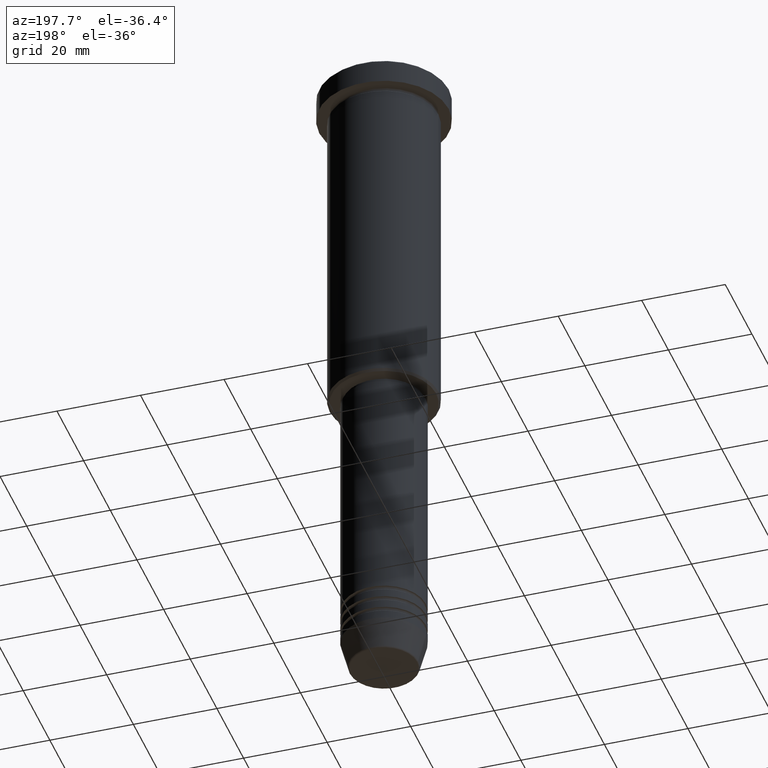
[diagram: clean part render]
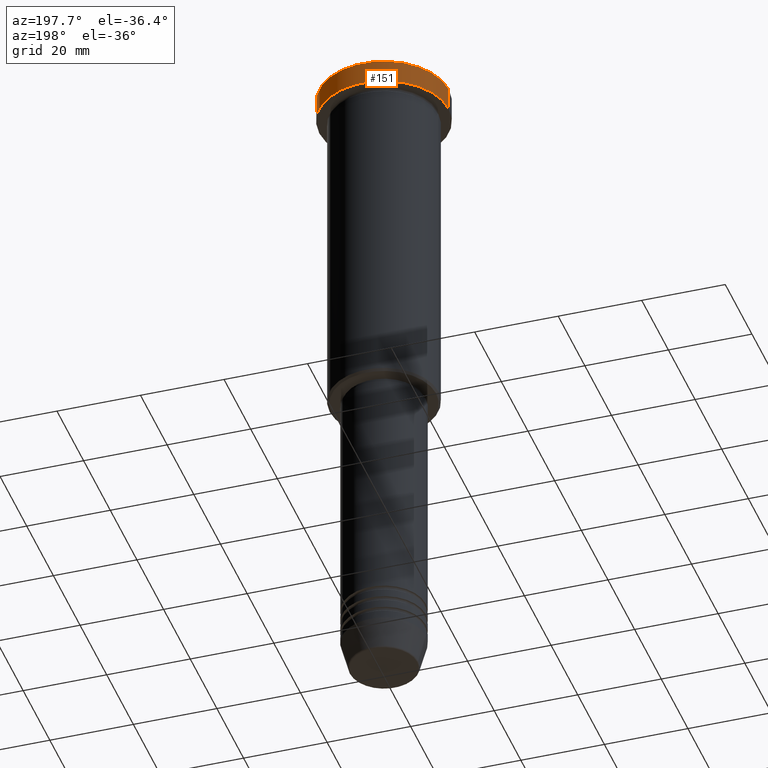
[diagram: same view with one face highlighted and labeled with its STEP entity id]
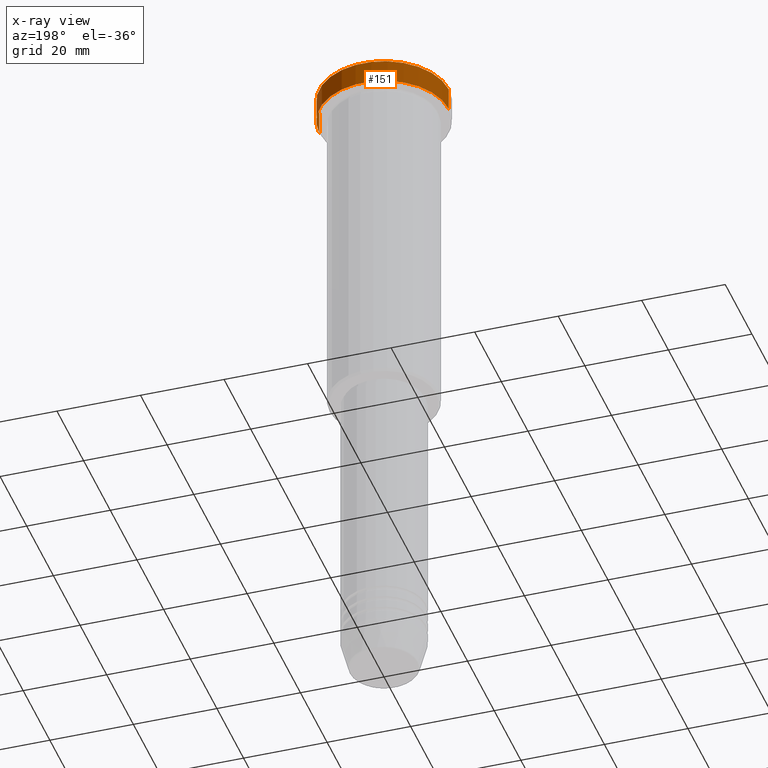
[diagram: x-ray of the same camera — body ghosted, the highlighted face saturated]
A machine part, auxiliary view. The second image highlights one B-rep face of the part: STEP entity #151.
The next image is the same camera in x-ray: the body ghosted, the highlighted face saturated — about 0% of this face is hidden behind the body in this view.
In plain terms, the highlighted cylindrical surface (partial cylindrical patch) has radius 15.5 mm, axis along (-0, -0, 1).
Its self-contained STEP definition (entity closure, byte-faithful):
#9 = VECTOR ( 'NONE', #422, 1000.000000000000000 ) ;
#82 = DIRECTION ( 'NONE',  ( 1.000000000000000000, 0.000000000000000000, 0.000000000000000000 ) ) ;
#86 = AXIS2_PLACEMENT_3D ( 'NONE', #808, #269, #362 ) ;
#88 = AXIS2_PLACEMENT_3D ( 'NONE', #877, #631, #1177 ) ;
#107 = CIRCLE ( 'NONE', #88, 15.50000000000000000 ) ;
#151 = ADVANCED_FACE ( 'NONE', ( #727 ), #538, .T. ) ;
#176 = ORIENTED_EDGE ( 'NONE', *, *, #536, .T. ) ;
#183 = EDGE_CURVE ( 'NONE', #190, #214, #1130, .T. ) ;
#190 = VERTEX_POINT ( 'NONE', #441 ) ;
#214 = VERTEX_POINT ( 'NONE', #529 ) ;
#269 = DIRECTION ( 'NONE',  ( 0.000000000000000000, 0.000000000000000000, -1.000000000000000000 ) ) ;
#341 = DIRECTION ( 'NONE',  ( -0.000000000000000000, -0.000000000000000000, 1.000000000000000000 ) ) ;
#350 = ORIENTED_EDGE ( 'NONE', *, *, #183, .T. ) ;
#362 = DIRECTION ( 'NONE',  ( 1.000000000000000000, 0.000000000000000000, 0.000000000000000000 ) ) ;
#397 = AXIS2_PLACEMENT_3D ( 'NONE', #552, #903, #82 ) ;
#406 = VERTEX_POINT ( 'NONE', #409 ) ;
#409 = CARTESIAN_POINT ( 'NONE',  ( 15.50000000000000000, 0.000000000000000000, -5.999999999999995559 ) ) ;
#422 = DIRECTION ( 'NONE',  ( -0.000000000000000000, -0.000000000000000000, 1.000000000000000000 ) ) ;
#441 = CARTESIAN_POINT ( 'NONE',  ( -15.50000000000000000, 1.898202538678397557E-15, -0.4999999999999848455 ) ) ;
#443 = LINE ( 'NONE', #643, #604 ) ;
#459 = EDGE_CURVE ( 'NONE', #406, #214, #1147, .T. ) ;
#488 = ORIENTED_EDGE ( 'NONE', *, *, #459, .F. ) ;
#498 = VERTEX_POINT ( 'NONE', #1156 ) ;
#529 = CARTESIAN_POINT ( 'NONE',  ( 15.50000000000000000, 0.000000000000000000, -0.4999999999999848455 ) ) ;
#536 = EDGE_CURVE ( 'NONE', #406, #498, #107, .T. ) ;
#538 = CYLINDRICAL_SURFACE ( 'NONE', #397, 15.50000000000000000 ) ;
#552 = CARTESIAN_POINT ( 'NONE',  ( 0.000000000000000000, 0.000000000000000000, 0.000000000000000000 ) ) ;
#604 = VECTOR ( 'NONE', #341, 1000.000000000000000 ) ;
#631 = DIRECTION ( 'NONE',  ( -0.000000000000000000, -0.000000000000000000, 1.000000000000000000 ) ) ;
#643 = CARTESIAN_POINT ( 'NONE',  ( -15.50000000000000000, 1.898202538678397557E-15, 0.000000000000000000 ) ) ;
#657 = ORIENTED_EDGE ( 'NONE', *, *, #980, .T. ) ;
#700 = CARTESIAN_POINT ( 'NONE',  ( 15.50000000000000000, 0.000000000000000000, 0.000000000000000000 ) ) ;
#727 = FACE_OUTER_BOUND ( 'NONE', #1007, .T. ) ;
#808 = CARTESIAN_POINT ( 'NONE',  ( 0.000000000000000000, 0.000000000000000000, -0.4999999999999848455 ) ) ;
#877 = CARTESIAN_POINT ( 'NONE',  ( 0.000000000000000000, 0.000000000000000000, -5.999999999999995559 ) ) ;
#903 = DIRECTION ( 'NONE',  ( -0.000000000000000000, -0.000000000000000000, 1.000000000000000000 ) ) ;
#980 = EDGE_CURVE ( 'NONE', #498, #190, #443, .T. ) ;
#1007 = EDGE_LOOP ( 'NONE', ( #176, #657, #350, #488 ) ) ;
#1130 = CIRCLE ( 'NONE', #86, 15.50000000000000000 ) ;
#1147 = LINE ( 'NONE', #700, #9 ) ;
#1156 = CARTESIAN_POINT ( 'NONE',  ( -15.50000000000000000, 1.898202538678397557E-15, -5.999999999999995559 ) ) ;
#1177 = DIRECTION ( 'NONE',  ( 1.000000000000000000, 0.000000000000000000, 0.000000000000000000 ) ) ;